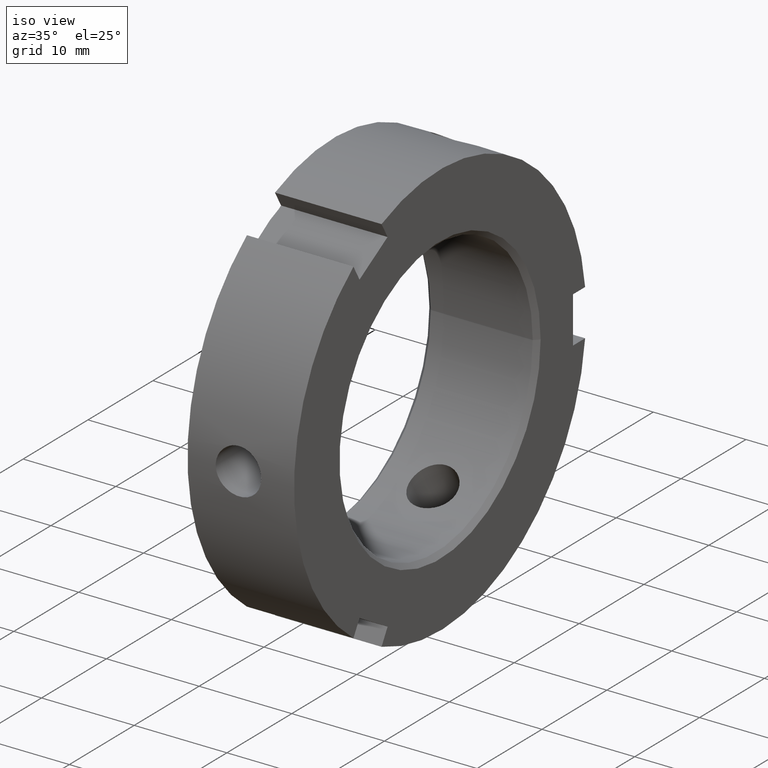
[diagram: clean part render]
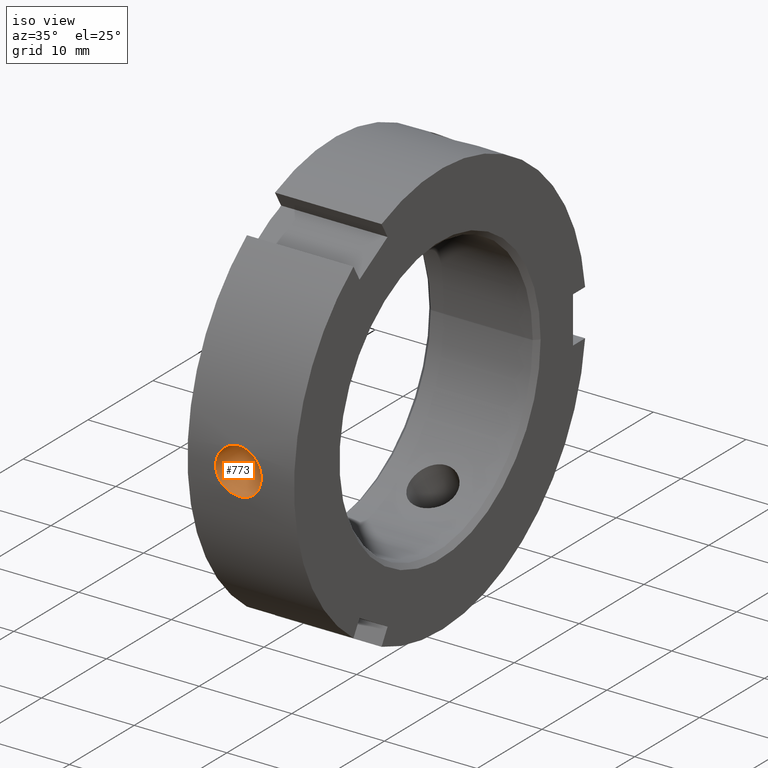
[diagram: same view with one face highlighted and labeled with its STEP entity id]
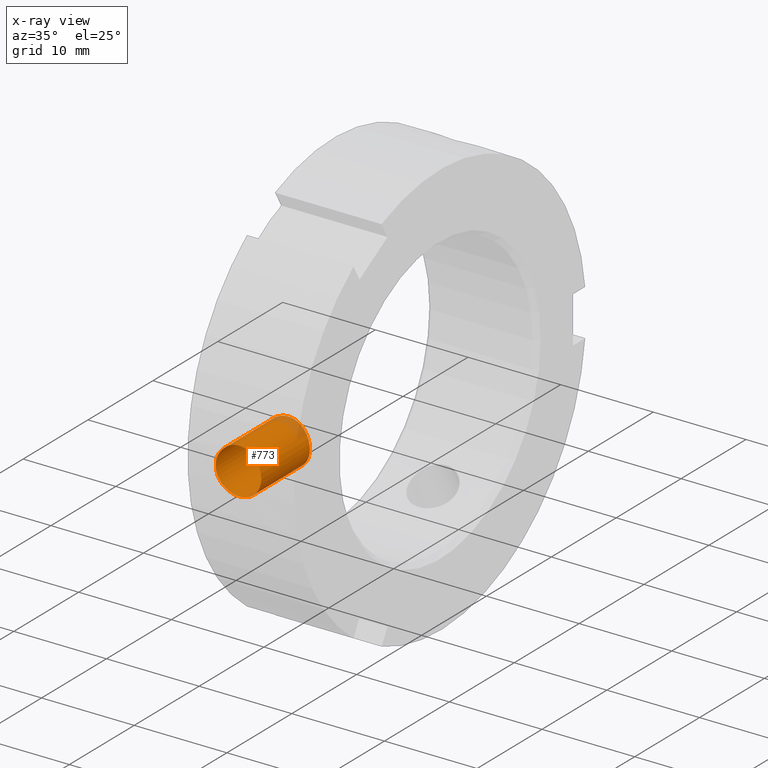
[diagram: x-ray of the same camera — body ghosted, the highlighted face saturated]
A machine part, iso view. The second image highlights one B-rep face of the part: STEP entity #773.
The next image is the same camera in x-ray: the body ghosted, the highlighted face saturated — about 7% of this face is hidden behind the body in this view.
In plain terms, the highlighted cylindrical surface (bore or boss wall) has radius 2.4585 mm, axis along (0, 1, 0).
Its self-contained STEP definition (entity closure, byte-faithful):
#194=CARTESIAN_POINT('',(5.999999999999995,-14.797154380150259,2.458500000000000));
#195=VERTEX_POINT('',#194);
#196=CARTESIAN_POINT('',(5.999999999999995,-14.797154380150259,2.458500000000000));
#197=CARTESIAN_POINT('',(5.690701021672715,-14.797154380150259,2.458500000000000));
#198=CARTESIAN_POINT('',(5.361174964781097,-14.807855053187362,2.396572059409469));
#199=CARTESIAN_POINT('',(4.755621264227968,-14.846311052826726,2.145501537189962));
#200=CARTESIAN_POINT('',(4.479544766165402,-14.873489811219564,1.956388809259662));
#201=CARTESIAN_POINT('',(4.043616630616775,-14.924354367056093,1.520460673711035));
#202=CARTESIAN_POINT('',(3.854499635617680,-14.951372939371181,1.244381838226960));
#203=CARTESIAN_POINT('',(3.603426014287464,-14.989461224055026,0.638820115417546));
#204=CARTESIAN_POINT('',(3.541499999999994,-15.0,0.309291259040118));
#205=CARTESIAN_POINT('',(3.541499999999994,-15.0,-0.309291259040118));
#206=CARTESIAN_POINT('',(3.603426014287463,-14.989461224055026,-0.638820115417547));
#207=CARTESIAN_POINT('',(3.854499635617680,-14.951372939371181,-1.244381838226960));
#208=CARTESIAN_POINT('',(4.043616630616775,-14.924354367056093,-1.520460673711035));
#209=CARTESIAN_POINT('',(4.479544766165402,-14.873489811219564,-1.956388809259662));
#210=CARTESIAN_POINT('',(4.755621264227968,-14.846311052826726,-2.145501537189962));
#211=CARTESIAN_POINT('',(5.361174964781097,-14.807855053187362,-2.396572059409469));
#212=CARTESIAN_POINT('',(5.690701021672715,-14.797154380150259,-2.458500000000000));
#213=CARTESIAN_POINT('',(6.309298978327274,-14.797154380150259,-2.458500000000000));
#214=CARTESIAN_POINT('',(6.638825035218892,-14.807855053187362,-2.396572059409469));
#215=CARTESIAN_POINT('',(7.244378735772021,-14.846311052826726,-2.145501537189961));
#216=CARTESIAN_POINT('',(7.520455233834587,-14.873489811219564,-1.956388809259662));
#217=CARTESIAN_POINT('',(7.956383369383213,-14.924354367056093,-1.520460673711035));
#218=CARTESIAN_POINT('',(8.145500364382309,-14.951372939371181,-1.244381838226960));
#219=CARTESIAN_POINT('',(8.396573985712525,-14.989461224055026,-0.638820115417545));
#220=CARTESIAN_POINT('',(8.458499999999994,-15.0,-0.309291259040118));
#221=CARTESIAN_POINT('',(8.458499999999996,-15.0,0.309291259040117));
#222=CARTESIAN_POINT('',(8.396573985712525,-14.989461224055026,0.638820115417545));
#223=CARTESIAN_POINT('',(8.145500364382309,-14.951372939371181,1.244381838226959));
#224=CARTESIAN_POINT('',(7.956383369383215,-14.924354367056093,1.520460673711035));
#225=CARTESIAN_POINT('',(7.520455233834587,-14.873489811219564,1.956388809259662));
#226=CARTESIAN_POINT('',(7.244378735772020,-14.846311052826726,2.145501537189962));
#227=CARTESIAN_POINT('',(6.638825035218891,-14.807855053187362,2.396572059409469));
#228=CARTESIAN_POINT('',(6.309298978327274,-14.797154380150259,2.458500000000000));
#229=CARTESIAN_POINT('',(5.999999999999995,-14.797154380150259,2.458500000000000));
#230=B_SPLINE_CURVE_WITH_KNOTS('',3,(#196,#197,#198,#199,#200,#201,#202,#203,#204,#205,#206,#207,#208,#209,#210,#211,#212,#213,#214,#215,#216,#217,#218,#219,#220,#221,#222,#223,#224,#225,#226,#227,#228,#229),.UNSPECIFIED.,.T.,.U.,(4,2,2,2,2,2,2,2,2,2,2,2,2,2,2,2,4),(0.0,0.092789693498184,0.185579386996367,0.278366764708402,0.371154142420438,0.463941520132473,0.556728897844508,0.649518591342692,0.742308284840875,0.835097978339059,0.927887671837242,1.020675049549278,1.113462427261313,1.206249804973348,1.299037182685384,1.391826876183567,1.484616569681751),.UNSPECIFIED.);
#231=EDGE_CURVE('',#195,#195,#230,.T.);
#720=CARTESIAN_POINT('',(5.999999999999995,-22.365280632042150,2.458500000000000));
#721=VERTEX_POINT('',#720);
#722=CARTESIAN_POINT('',(5.999999999999995,-22.365280632042150,2.458500000000000));
#723=CARTESIAN_POINT('',(6.308960393679368,-22.365280632042150,2.458500000000000));
#724=CARTESIAN_POINT('',(6.638344698398968,-22.372342768713821,2.396703641114719));
#725=CARTESIAN_POINT('',(7.243994563331624,-22.397807019914900,2.145728296047083));
#726=CARTESIAN_POINT('',(7.520281295008822,-22.415836664311506,1.956562748085426));
#727=CARTESIAN_POINT('',(7.956561687762608,-22.449646149616228,1.520282355331640));
#728=CARTESIAN_POINT('',(8.145728064719984,-22.467628717583782,1.243995160332736));
#729=CARTESIAN_POINT('',(8.396704023595195,-22.492985160308891,0.638343736636801));
#730=CARTESIAN_POINT('',(8.458499999999994,-22.499999999999996,0.308958891906832));
#731=CARTESIAN_POINT('',(8.458499999999994,-22.499999999999996,-0.308958891906831));
#732=CARTESIAN_POINT('',(8.396704023595195,-22.492985160308891,-0.638343736636802));
#733=CARTESIAN_POINT('',(8.145728064719984,-22.467628717583782,-1.243995160332736));
#734=CARTESIAN_POINT('',(7.956561687762608,-22.449646149616228,-1.520282355331640));
#735=CARTESIAN_POINT('',(7.520281295008823,-22.415836664311506,-1.956562748085426));
#736=CARTESIAN_POINT('',(7.243994563331622,-22.397807019914900,-2.145728296047083));
#737=CARTESIAN_POINT('',(6.638344698398965,-22.372342768713821,-2.396703641114719));
#738=CARTESIAN_POINT('',(6.308960393679368,-22.365280632042150,-2.458500000000000));
#739=CARTESIAN_POINT('',(5.691039606320620,-22.365280632042154,-2.458500000000000));
#740=CARTESIAN_POINT('',(5.361655301601020,-22.372342768713821,-2.396703641114719));
#741=CARTESIAN_POINT('',(4.756005436668366,-22.397807019914900,-2.145728296047083));
#742=CARTESIAN_POINT('',(4.479718704991166,-22.415836664311506,-1.956562748085426));
#743=CARTESIAN_POINT('',(4.043438312237380,-22.449646149616228,-1.520282355331641));
#744=CARTESIAN_POINT('',(3.854271935280005,-22.467628717583782,-1.243995160332737));
#745=CARTESIAN_POINT('',(3.603295976404794,-22.492985160308891,-0.638343736636803));
#746=CARTESIAN_POINT('',(3.541499999999994,-22.499999999999996,-0.308958891906832));
#747=CARTESIAN_POINT('',(3.541499999999994,-22.500000000000000,0.308958891906830));
#748=CARTESIAN_POINT('',(3.603295976404794,-22.492985160308887,0.638343736636801));
#749=CARTESIAN_POINT('',(3.854271935280003,-22.467628717583779,1.243995160332735));
#750=CARTESIAN_POINT('',(4.043438312237379,-22.449646149616235,1.520282355331639));
#751=CARTESIAN_POINT('',(4.479718704991166,-22.415836664311506,1.956562748085426));
#752=CARTESIAN_POINT('',(4.756005436668367,-22.397807019914900,2.145728296047083));
#753=CARTESIAN_POINT('',(5.361655301601022,-22.372342768713821,2.396703641114719));
#754=CARTESIAN_POINT('',(5.691039606320620,-22.365280632042150,2.458500000000000));
#755=CARTESIAN_POINT('',(5.999999999999995,-22.365280632042150,2.458500000000000));
#756=B_SPLINE_CURVE_WITH_KNOTS('',3,(#722,#723,#724,#725,#726,#727,#728,#729,#730,#731,#732,#733,#734,#735,#736,#737,#738,#739,#740,#741,#742,#743,#744,#745,#746,#747,#748,#749,#750,#751,#752,#753,#754,#755),.UNSPECIFIED.,.T.,.U.,(4,2,2,2,2,2,2,2,2,2,2,2,2,2,2,2,4),(0.0,0.092688118103812,0.185376236207624,0.278063903779673,0.370751571351723,0.463439238923772,0.556126906495822,0.648815024599634,0.741503142703446,0.834191260807258,0.926879378911070,1.019567046483120,1.112254714055169,1.204942381627218,1.297630049199268,1.390318167303080,1.483006285406892),.UNSPECIFIED.);
#757=EDGE_CURVE('',#721,#721,#756,.T.);
#762=CARTESIAN_POINT('',(5.999999999999995,-64.664368781229939,0.0));
#763=DIRECTION('',(0.0,1.0,0.0));
#764=DIRECTION('',(-1.0,0.0,0.0));
#765=AXIS2_PLACEMENT_3D('',#762,#763,#764);
#766=CYLINDRICAL_SURFACE('',#765,2.458500000000000);
#767=ORIENTED_EDGE('',*,*,#757,.F.);
#768=EDGE_LOOP('',(#767));
#769=FACE_OUTER_BOUND('',#768,.T.);
#770=ORIENTED_EDGE('',*,*,#231,.F.);
#771=EDGE_LOOP('',(#770));
#772=FACE_BOUND('',#771,.T.);
#773=ADVANCED_FACE('',(#769,#772),#766,.F.);